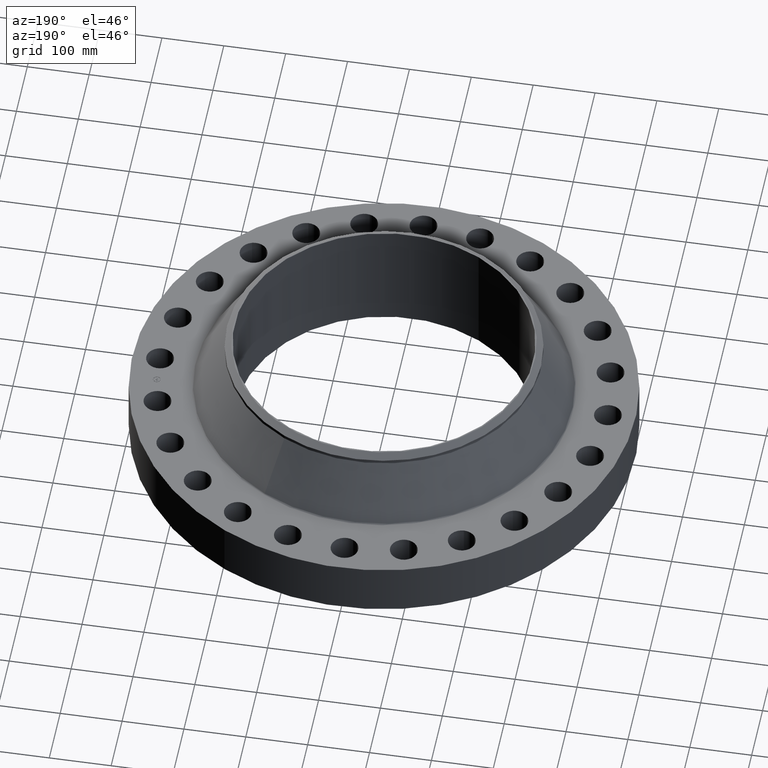
[diagram: clean part render]
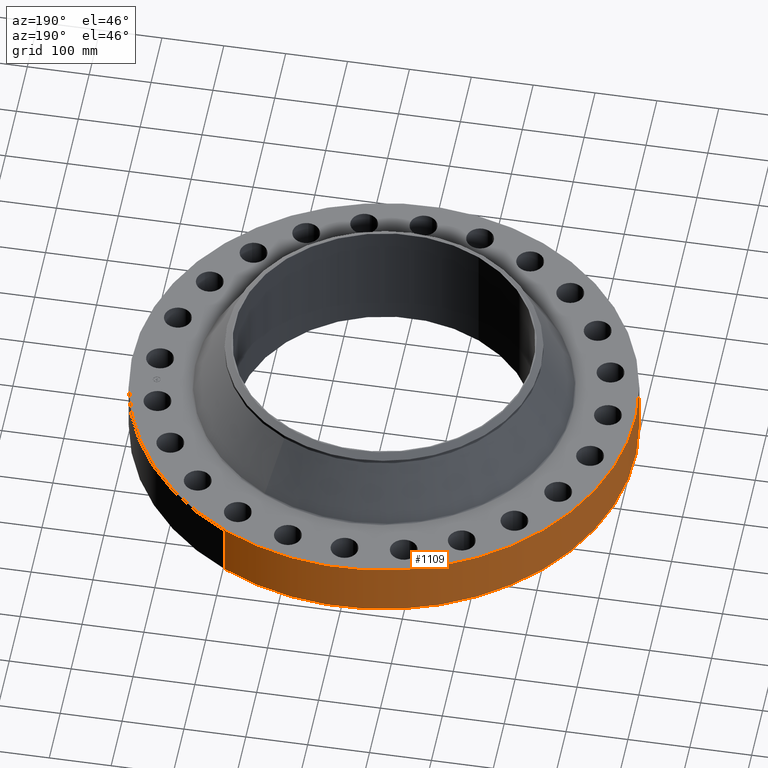
[diagram: same view with one face highlighted and labeled with its STEP entity id]
A machine part, auxiliary view. The second image highlights one B-rep face of the part: STEP entity #1109.
In plain terms, the highlighted cylindrical surface (partial cylindrical patch) has radius 406.4 mm, axis along (0, 0, -1).
Its self-contained STEP definition (entity closure, byte-faithful):
#143=AXIS2_PLACEMENT_3D('Circle Axis2P3D',#141,#142,$) ;
#619=AXIS2_PLACEMENT_3D('Circle Axis2P3D',#617,#618,$) ;
#1091=AXIS2_PLACEMENT_3D('Cylinder Axis2P3D',#1088,#1089,#1090) ;
#141=CARTESIAN_POINT('Axis2P3D Location',(4.36664877485E-011,-4.98532448918E-011,0.)) ;
#145=CARTESIAN_POINT('Vertex',(-7.67080861772,-14.0413209903,2.23792987641E-015)) ;
#147=CARTESIAN_POINT('Vertex',(7.67080861772,14.0413209903,9.9990706878E-012)) ;
#612=CARTESIAN_POINT('Vertex',(7.67080861772,14.0413209903,3.50000000002)) ;
#614=CARTESIAN_POINT('Vertex',(-7.67080861772,-14.0413209903,3.50000000002)) ;
#617=CARTESIAN_POINT('Axis2P3D Location',(4.36664877485E-011,-4.85205576504E-011,3.50000000001)) ;
#1088=CARTESIAN_POINT('Axis2P3D Location',(0.,0.,3.75000000001)) ;
#1093=CARTESIAN_POINT('Line Origine',(-7.67080861772,-14.0413209903,1.75000000001)) ;
#1098=CARTESIAN_POINT('Line Origine',(7.67080861772,14.0413209903,1.75000000001)) ;
#142=DIRECTION('Axis2P3D Direction',(0.,0.,-0.0393700787402)) ;
#618=DIRECTION('Axis2P3D Direction',(0.,0.,-0.0393700787402)) ;
#1089=DIRECTION('Axis2P3D Direction',(0.,0.,-0.0393700787402)) ;
#1090=DIRECTION('Axis2P3D XDirection',(-0.0188750212049,-0.0345504945626,0.)) ;
#1094=DIRECTION('Vector Direction',(0.,0.,-0.0393700787402)) ;
#1099=DIRECTION('Vector Direction',(0.,0.,-0.0393700787402)) ;
#1095=VECTOR('Line Direction',#1094,0.0393700787402) ;
#1100=VECTOR('Line Direction',#1099,0.0393700787402) ;
#1104=ORIENTED_EDGE('',*,*,#149,.F.) ;
#1105=ORIENTED_EDGE('',*,*,#1097,.T.) ;
#1106=ORIENTED_EDGE('',*,*,#621,.T.) ;
#1107=ORIENTED_EDGE('',*,*,#1102,.F.) ;
#1109=ADVANCED_FACE('PartBody',(#1108),#1092,.T.) ;
#144=CIRCLE('generated circle',#143,16.0000000001) ;
#620=CIRCLE('generated circle',#619,16.0000000001) ;
#1092=CYLINDRICAL_SURFACE('generated cylinder',#1091,16.0000000001) ;
#149=EDGE_CURVE('',#146,#148,#144,.T.) ;
#621=EDGE_CURVE('',#615,#613,#620,.T.) ;
#1097=EDGE_CURVE('',#146,#615,#1096,.F.) ;
#1102=EDGE_CURVE('',#148,#613,#1101,.F.) ;
#1103=EDGE_LOOP('',(#1104,#1105,#1106,#1107)) ;
#1108=FACE_OUTER_BOUND('',#1103,.T.) ;
#1096=LINE('Line',#1093,#1095) ;
#1101=LINE('Line',#1098,#1100) ;
#146=VERTEX_POINT('',#145) ;
#148=VERTEX_POINT('',#147) ;
#613=VERTEX_POINT('',#612) ;
#615=VERTEX_POINT('',#614) ;